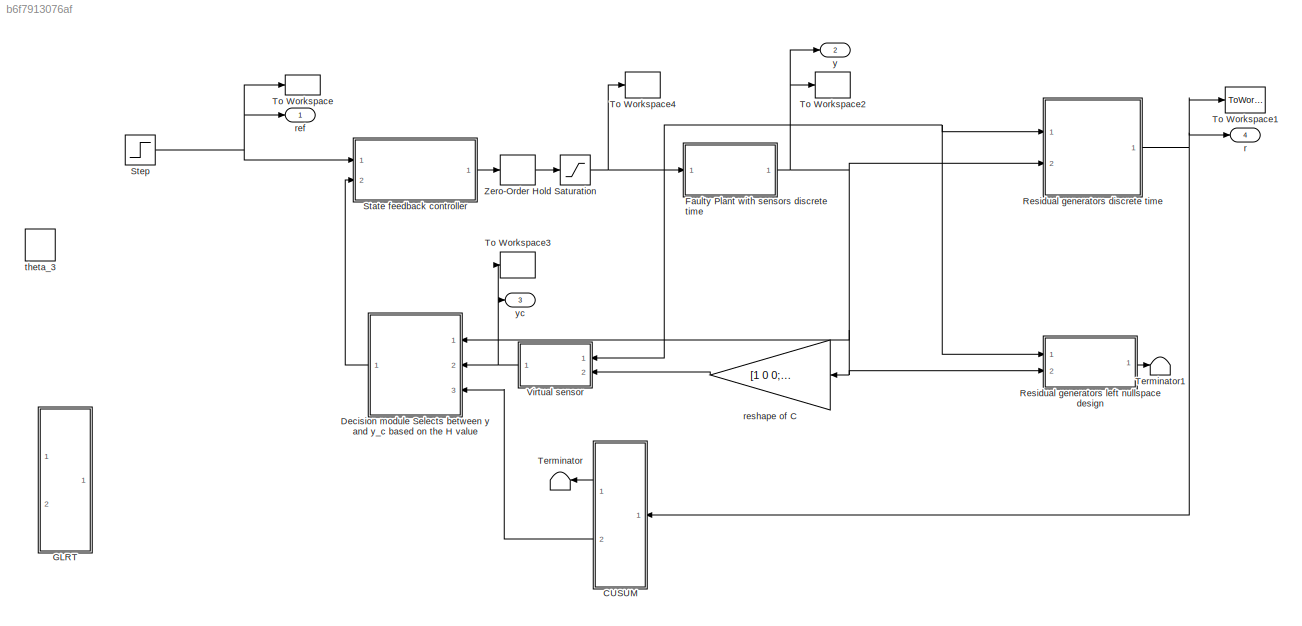
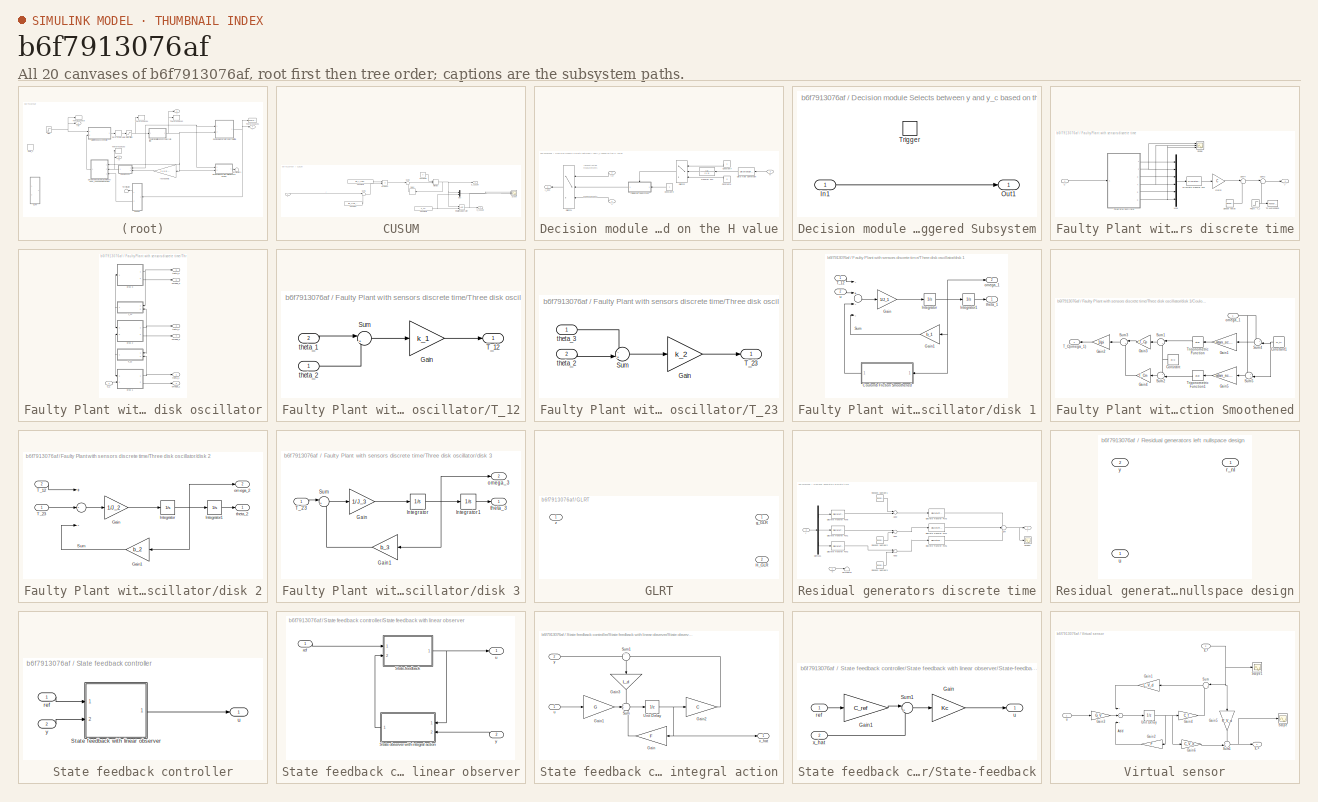
[diagram: thumbnail index - all 20 canvases of the model, root first then tree order]
MODEL slx_b6f7913076af
KIND model
CONFIG AbsTol = auto
CONFIG EnableMultiTasking = off
CONFIG FixedStep = auto
CONFIG MaxStep = auto
CONFIG MinStep = auto
CONFIG RelTol = 1e-8
CONFIG SampleTimeConstraint = Unconstrained
CONFIG Solver = VariableStepAuto
CONFIG SolverName = VariableStepAuto
CONFIG StartTime = 0.0
CONFIG StopTime = simTime
BLOCK [SubSystem] CUSUM
  Ports = [1, 2]
  RequestExecContextInheritance = off
BLOCK [Constant] CUSUM/Constant
  Value = (mu_0 + mu_1_sol)/2
BLOCK [Constant] CUSUM/Constant1
  Value = (mu_1_sol-mu_0)/(var_r0)
BLOCK [Constant] CUSUM/Constant2
  Value = h_sol
  VectorParams1D = off
BLOCK [Constant] CUSUM/Constant3
  Value = 0
BLOCK [Delay] CUSUM/Delay
  DelayLength = 1
  InputPortMap = u0
  Ports = [1, 1]
  SampleTime = 0.004
BLOCK [Outport] CUSUM/H_CUSUM
  IconDisplay = Port number
  Port = 2
BLOCK [MinMax] CUSUM/MinMax
  Function = max
  InputSameDT = off
  Inputs = 2
  Ports = [2, 1]
  SaturateOnIntegerOverflow = off
BLOCK [Mux] CUSUM/Mux
  DisplayOption = bar
  Inputs = 2
  Ports = [2, 1]
BLOCK [Product] CUSUM/Product
  InputSameDT = off
  OutDataTypeStr = Inherit: Inherit via internal rule
  Ports = [2, 1]
  RndMeth = Floor
  SaturateOnIntegerOverflow = off
BLOCK [RelationalOperator] CUSUM/Relational Operator
  InputSameDT = off
  OutDataTypeStr = boolean
  Ports = [2, 1]
  RndMeth = Simplest
BLOCK [Scope] CUSUM/Scope
  Floating = off
  NumInputPorts = 2
  Ports = [2]
  ScopeSpecificationString = Simulink.scopes.TimeScopeBlockCfg('CurrentConfiguration', extmgr.ConfigurationSet(extmgr.Configuration('Core','General UI',true),extmgr.Configuration('Core','Source UI',true),extmgr.Configuration('Sources','WiredSimulink',true,'DataLoggingVariableName','ScopeData1'),extmgr.Configuration('Visuals','Time Domain',true,'SerializedDisplays',{struct('MinYLimReal','-231.0999','MaxYLimReal','2079.89914','...<+2108ch>
BLOCK [Sum] CUSUM/Sum1
  IconShape = round
  InputSameDT = off
  Inputs = |+-
  OutDataTypeStr = Inherit: Inherit via internal rule
  Ports = [2, 1]
  SaturateOnIntegerOverflow = off
BLOCK [Sum] CUSUM/Sum2
  IconShape = round
  InputSameDT = off
  Inputs = |++
  OutDataTypeStr = Inherit: Inherit via internal rule
  Ports = [2, 1]
  SaturateOnIntegerOverflow = off
BLOCK [Outport] CUSUM/g_CUSUM
  IconDisplay = Port number
BLOCK [Inport] CUSUM/r
  IconDisplay = Port number
BLOCK [SubSystem] Decision module Selects between y and y_c based on the H value
  Ports = [3, 1]
  RequestExecContextInheritance = off
BLOCK [Constant] Decision module Selects between y and y_c based on the H value/Constant6
  Value = 0
BLOCK [Constant] Decision module Selects between y and y_c based on the H value/Constant7
BLOCK [Constant] Decision module Selects between y and y_c based on the H value/Constant9
BLOCK [DataTypeConversion] Decision module Selects between y and y_c based on the H value/Data Type Conversion
  OutDataTypeStr = double
  RndMeth = Floor
  SaturateOnIntegerOverflow = off
BLOCK [Inport] Decision module Selects between y and y_c based on the H value/H
  IconDisplay = Port number
  Port = 3
BLOCK [Switch] Decision module Selects between y and y_c based on the H value/Switch1
  InputSameDT = off
  SaturateOnIntegerOverflow = off
  Threshold = 0.98
BLOCK [Switch] Decision module Selects between y and y_c based on the H value/Switch2
  Criteria = u2 > Threshold
  InputSameDT = off
  SaturateOnIntegerOverflow = off
BLOCK [TransferFcn] Decision module Selects between y and y_c based on the H value/Transfer Fcn
  Denominator = [1 1]
BLOCK [SubSystem] Decision module Selects between y and y_c based on the H value/Triggered Subsystem
  Ports = [1, 1, 0, 1]
  RequestExecContextInheritance = off
  TreatAsAtomicUnit = on
BLOCK [Inport] Decision module Selects between y and y_c based on the H value/Triggered Subsystem/In1
  IconDisplay = Port number
BLOCK [Outport] Decision module Selects between y and y_c based on the H value/Triggered Subsystem/Out1
  IconDisplay = Port number
BLOCK [TriggerPort] Decision module Selects between y and y_c based on the H value/Triggered Subsystem/Trigger
  Ports = []
  StatesWhenEnabling = held
  VariantControl = Variant
BLOCK [Inport] Decision module Selects between y and y_c based on the H value/y
  IconDisplay = Port number
BLOCK [Outport] Decision module Selects between y and y_c based on the H value/y_FTC
  IconDisplay = Port number
BLOCK [Inport] Decision module Selects between y and y_c based on the H value/y_c
  IconDisplay = Port number
  Port = 2
BLOCK [SubSystem] Faulty Plant with sensors discrete time
  Ports = [1, 1]
  RequestExecContextInheritance = off
BLOCK [DiscreteTransferFcn] Faulty Plant with sensors discrete time/Discrete Transfer Fcn
  Denominator = [1]
  InputPortMap = u0
  Ports = [1, 1]
  SampleTime = T_s
BLOCK [Step] Faulty Plant with sensors discrete time/Fault: f_y
  After = f_m
  Before = [0;0;0]
  SampleTime = 0
  Time = f_m_time
BLOCK [Gain] Faulty Plant with sensors discrete time/Gain2
  Gain = C
  Multiplication = Matrix(K*u) (u vector)
  OutDataTypeStr = Inherit: Inherit via internal rule
  ParamDataTypeStr = Inherit: Inherit via internal rule
  SaturateOnIntegerOverflow = off
BLOCK [Mux] Faulty Plant with sensors discrete time/Mux
  DisplayOption = bar
  Inputs = 6
  Ports = [6, 1]
BLOCK [Scope] Faulty Plant with sensors discrete time/Scope
  Floating = off
  NumInputPorts = 3
  Ports = [3]
  ScopeSpecificationString = Simulink.scopes.TimeScopeBlockCfg('CurrentConfiguration', extmgr.ConfigurationSet(extmgr.Configuration('Core','General UI',true),extmgr.Configuration('Core','Source UI',true),extmgr.Configuration('Sources','WiredSimulink',true),extmgr.Configuration('Visuals','Time Domain',true,'SerializedDisplays',{struct('MinYLimReal','-0.1547','MaxYLimReal','0.14887','YLabelReal','','MinYLimMag','0.00000','MaxYL...<+2761ch>
BLOCK [RandomNumber] Faulty Plant with sensors discrete time/Sensor noise
  Commented = on
  Mean = zeros(3,1)
  SampleTime = T_s
  Variance = sigma_meas
BLOCK [Sum] Faulty Plant with sensors discrete time/Sum2
  IconShape = round
  InputSameDT = off
  Inputs = |++
  OutDataTypeStr = Inherit: Inherit via internal rule
  Ports = [2, 1]
  SaturateOnIntegerOverflow = off
BLOCK [Sum] Faulty Plant with sensors discrete time/Sum4
  IconShape = round
  InputSameDT = off
  Inputs = |++
  OutDataTypeStr = Inherit: Inherit via internal rule
  Ports = [2, 1]
  SaturateOnIntegerOverflow = off
BLOCK [SubSystem] Faulty Plant with sensors discrete time/Three disk oscillator
  Ports = [1, 6]
  RequestExecContextInheritance = off
BLOCK [SubSystem] Faulty Plant with sensors discrete time/Three disk oscillator/T_12
  Ports = [2, 1]
  RequestExecContextInheritance = off
BLOCK [Gain] Faulty Plant with sensors discrete time/Three disk oscillator/T_12/Gain
  Gain = k_1
  OutDataTypeStr = Inherit: Inherit via internal rule
  ParamDataTypeStr = Inherit: Inherit via internal rule
  SaturateOnIntegerOverflow = off
BLOCK [Sum] Faulty Plant with sensors discrete time/Three disk oscillator/T_12/Sum
  IconShape = round
  InputSameDT = off
  Inputs = |+-
  OutDataTypeStr = Inherit: Inherit via internal rule
  Ports = [2, 1]
  SaturateOnIntegerOverflow = off
BLOCK [Outport] Faulty Plant with sensors discrete time/Three disk oscillator/T_12/T_12
  IconDisplay = Port number
BLOCK [Inport] Faulty Plant with sensors discrete time/Three disk oscillator/T_12/theta_1
  IconDisplay = Port number
  Port = 2
BLOCK [Inport] Faulty Plant with sensors discrete time/Three disk oscillator/T_12/theta_2
  IconDisplay = Port number
BLOCK [SubSystem] Faulty Plant with sensors discrete time/Three disk oscillator/T_23
  Ports = [2, 1]
  RequestExecContextInheritance = off
BLOCK [Gain] Faulty Plant with sensors discrete time/Three disk oscillator/T_23/Gain
  Gain = k_2
  OutDataTypeStr = Inherit: Inherit via internal rule
  ParamDataTypeStr = Inherit: Inherit via internal rule
  SaturateOnIntegerOverflow = off
BLOCK [Sum] Faulty Plant with sensors discrete time/Three disk oscillator/T_23/Sum
  IconShape = round
  InputSameDT = off
  Inputs = -+|
  OutDataTypeStr = Inherit: Inherit via internal rule
  Ports = [2, 1]
  SaturateOnIntegerOverflow = off
BLOCK [Outport] Faulty Plant with sensors discrete time/Three disk oscillator/T_23/T_23
  IconDisplay = Port number
BLOCK [Inport] Faulty Plant with sensors discrete time/Three disk oscillator/T_23/theta_2
  IconDisplay = Port number
  Port = 2
BLOCK [Inport] Faulty Plant with sensors discrete time/Three disk oscillator/T_23/theta_3
  IconDisplay = Port number
BLOCK [SubSystem] Faulty Plant with sensors discrete time/Three disk oscillator/disk 1
  Ports = [2, 2]
  RequestExecContextInheritance = off
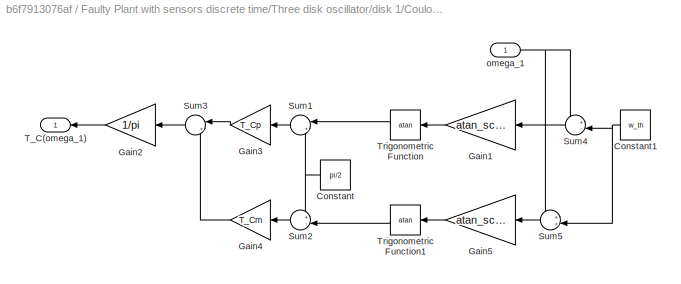
BLOCK [SubSystem] Faulty Plant with sensors discrete time/Three disk oscillator/disk 1/Coulomb Friction Smoothened
  Ports = [1, 1]
  RequestExecContextInheritance = off
BLOCK [Constant] Faulty Plant with sensors discrete time/Three disk oscillator/disk 1/Coulomb Friction Smoothened/Constant
  Value = pi/2
BLOCK [Constant] Faulty Plant with sensors discrete time/Three disk oscillator/disk 1/Coulomb Friction Smoothened/Constant1
  Value = w_th
BLOCK [Gain] Faulty Plant with sensors discrete time/Three disk oscillator/disk 1/Coulomb Friction Smoothened/Gain1
  Gain = atan_scale
  OutDataTypeStr = Inherit: Inherit via internal rule
  ParamDataTypeStr = Inherit: Inherit via internal rule
  SaturateOnIntegerOverflow = off
BLOCK [Gain] Faulty Plant with sensors discrete time/Three disk oscillator/disk 1/Coulomb Friction Smoothened/Gain2
  Gain = 1/pi
  OutDataTypeStr = Inherit: Inherit via internal rule
  ParamDataTypeStr = Inherit: Inherit via internal rule
  SaturateOnIntegerOverflow = off
BLOCK [Gain] Faulty Plant with sensors discrete time/Three disk oscillator/disk 1/Coulomb Friction Smoothened/Gain3
  Gain = T_Cp
  OutDataTypeStr = Inherit: Inherit via internal rule
  ParamDataTypeStr = Inherit: Inherit via internal rule
  SaturateOnIntegerOverflow = off
BLOCK [Gain] Faulty Plant with sensors discrete time/Three disk oscillator/disk 1/Coulomb Friction Smoothened/Gain4
  Gain = T_Cm
  OutDataTypeStr = Inherit: Inherit via internal rule
  ParamDataTypeStr = Inherit: Inherit via internal rule
  SaturateOnIntegerOverflow = off
BLOCK [Gain] Faulty Plant with sensors discrete time/Three disk oscillator/disk 1/Coulomb Friction Smoothened/Gain5
  Gain = atan_scale
  OutDataTypeStr = Inherit: Inherit via internal rule
  ParamDataTypeStr = Inherit: Inherit via internal rule
  SaturateOnIntegerOverflow = off
BLOCK [Sum] Faulty Plant with sensors discrete time/Three disk oscillator/disk 1/Coulomb Friction Smoothened/Sum1
  IconShape = round
  InputSameDT = off
  Inputs = |++
  OutDataTypeStr = Inherit: Inherit via internal rule
  Ports = [2, 1]
  SaturateOnIntegerOverflow = off
BLOCK [Sum] Faulty Plant with sensors discrete time/Three disk oscillator/disk 1/Coulomb Friction Smoothened/Sum2
  IconShape = round
  InputSameDT = off
  Inputs = +-|
  OutDataTypeStr = Inherit: Inherit via internal rule
  Ports = [2, 1]
  SaturateOnIntegerOverflow = off
BLOCK [Sum] Faulty Plant with sensors discrete time/Three disk oscillator/disk 1/Coulomb Friction Smoothened/Sum3
  IconShape = round
  InputSameDT = off
  Inputs = |+-
  OutDataTypeStr = Inherit: Inherit via internal rule
  Ports = [2, 1]
  SaturateOnIntegerOverflow = off
BLOCK [Sum] Faulty Plant with sensors discrete time/Three disk oscillator/disk 1/Coulomb Friction Smoothened/Sum4
  IconShape = round
  InputSameDT = off
  Inputs = +-|
  OutDataTypeStr = Inherit: Inherit via internal rule
  Ports = [2, 1]
  SaturateOnIntegerOverflow = off
BLOCK [Sum] Faulty Plant with sensors discrete time/Three disk oscillator/disk 1/Coulomb Friction Smoothened/Sum5
  IconShape = round
  InputSameDT = off
  Inputs = ++|
  OutDataTypeStr = Inherit: Inherit via internal rule
  Ports = [2, 1]
  SaturateOnIntegerOverflow = off
BLOCK [Outport] Faulty Plant with sensors discrete time/Three disk oscillator/disk 1/Coulomb Friction Smoothened/T_C(omega_1)
  IconDisplay = Port number
BLOCK [Trigonometry] Faulty Plant with sensors discrete time/Three disk oscillator/disk 1/Coulomb Friction Smoothened/Trigonometric Function
  Operator = atan
  Ports = [1, 1]
BLOCK [Trigonometry] Faulty Plant with sensors discrete time/Three disk oscillator/disk 1/Coulomb Friction Smoothened/Trigonometric Function1
  Operator = atan
  Ports = [1, 1]
BLOCK [Inport] Faulty Plant with sensors discrete time/Three disk oscillator/disk 1/Coulomb Friction Smoothened/omega_1
  IconDisplay = Port number
BLOCK [Gain] Faulty Plant with sensors discrete time/Three disk oscillator/disk 1/Gain
  Gain = 1/J_1
  OutDataTypeStr = Inherit: Inherit via internal rule
  ParamDataTypeStr = Inherit: Inherit via internal rule
  SaturateOnIntegerOverflow = off
BLOCK [Gain] Faulty Plant with sensors discrete time/Three disk oscillator/disk 1/Gain1
  Gain = b_1
  OutDataTypeStr = Inherit: Inherit via internal rule
  ParamDataTypeStr = Inherit: Inherit via internal rule
  SaturateOnIntegerOverflow = off
BLOCK [Integrator] Faulty Plant with sensors discrete time/Three disk oscillator/disk 1/Integrator
  InitialCondition = x_0(2)
  Ports = [1, 1]
BLOCK [Integrator] Faulty Plant with sensors discrete time/Three disk oscillator/disk 1/Integrator1
  InitialCondition = x_0(1)
  Ports = [1, 1]
BLOCK [Sum] Faulty Plant with sensors discrete time/Three disk oscillator/disk 1/Sum
  InputSameDT = off
  Inputs = -+--
  OutDataTypeStr = Inherit: Inherit via internal rule
  Ports = [4, 1]
  SaturateOnIntegerOverflow = off
BLOCK [Inport] Faulty Plant with sensors discrete time/Three disk oscillator/disk 1/T_12
  IconDisplay = Port number
BLOCK [Outport] Faulty Plant with sensors discrete time/Three disk oscillator/disk 1/omega_1
  IconDisplay = Port number
  Port = 2
BLOCK [Outport] Faulty Plant with sensors discrete time/Three disk oscillator/disk 1/theta_1
  IconDisplay = Port number
BLOCK [Inport] Faulty Plant with sensors discrete time/Three disk oscillator/disk 1/u
  IconDisplay = Port number
  Port = 2
BLOCK [SubSystem] Faulty Plant with sensors discrete time/Three disk oscillator/disk 2
  Ports = [2, 2]
  RequestExecContextInheritance = off
BLOCK [Gain] Faulty Plant with sensors discrete time/Three disk oscillator/disk 2/Gain
  Gain = 1/J_2
  OutDataTypeStr = Inherit: Inherit via internal rule
  ParamDataTypeStr = Inherit: Inherit via internal rule
  SaturateOnIntegerOverflow = off
BLOCK [Gain] Faulty Plant with sensors discrete time/Three disk oscillator/disk 2/Gain1
  Gain = b_2
  OutDataTypeStr = Inherit: Inherit via internal rule
  ParamDataTypeStr = Inherit: Inherit via internal rule
  SaturateOnIntegerOverflow = off
BLOCK [Integrator] Faulty Plant with sensors discrete time/Three disk oscillator/disk 2/Integrator
  InitialCondition = x_0(4)
  Ports = [1, 1]
BLOCK [Integrator] Faulty Plant with sensors discrete time/Three disk oscillator/disk 2/Integrator1
  InitialCondition = x_0(3)
  Ports = [1, 1]
BLOCK [Sum] Faulty Plant with sensors discrete time/Three disk oscillator/disk 2/Sum
  InputSameDT = off
  Inputs = +--
  OutDataTypeStr = Inherit: Inherit via internal rule
  Ports = [3, 1]
  SaturateOnIntegerOverflow = off
BLOCK [Inport] Faulty Plant with sensors discrete time/Three disk oscillator/disk 2/T_12
  IconDisplay = Port number
  Port = 2
BLOCK [Inport] Faulty Plant with sensors discrete time/Three disk oscillator/disk 2/T_23
  IconDisplay = Port number
BLOCK [Outport] Faulty Plant with sensors discrete time/Three disk oscillator/disk 2/omega_2
  IconDisplay = Port number
  Port = 2
BLOCK [Outport] Faulty Plant with sensors discrete time/Three disk oscillator/disk 2/theta_2
  IconDisplay = Port number
BLOCK [SubSystem] Faulty Plant with sensors discrete time/Three disk oscillator/disk 3
  Ports = [1, 2]
  RequestExecContextInheritance = off
BLOCK [Gain] Faulty Plant with sensors discrete time/Three disk oscillator/disk 3/Gain
  Gain = 1/J_3
  OutDataTypeStr = Inherit: Inherit via internal rule
  ParamDataTypeStr = Inherit: Inherit via internal rule
  SaturateOnIntegerOverflow = off
BLOCK [Gain] Faulty Plant with sensors discrete time/Three disk oscillator/disk 3/Gain1
  Gain = b_3
  OutDataTypeStr = Inherit: Inherit via internal rule
  ParamDataTypeStr = Inherit: Inherit via internal rule
  SaturateOnIntegerOverflow = off
BLOCK [Integrator] Faulty Plant with sensors discrete time/Three disk oscillator/disk 3/Integrator
  InitialCondition = x_0(6)
  Ports = [1, 1]
BLOCK [Integrator] Faulty Plant with sensors discrete time/Three disk oscillator/disk 3/Integrator1
  InitialCondition = x_0(5)
  Ports = [1, 1]
BLOCK [Sum] Faulty Plant with sensors discrete time/Three disk oscillator/disk 3/Sum
  IconShape = round
  InputSameDT = off
  Inputs = |+-
  OutDataTypeStr = Inherit: Inherit via internal rule
  Ports = [2, 1]
  SaturateOnIntegerOverflow = off
BLOCK [Inport] Faulty Plant with sensors discrete time/Three disk oscillator/disk 3/T_23
  IconDisplay = Port number
BLOCK [Outport] Faulty Plant with sensors discrete time/Three disk oscillator/disk 3/omega_3
  IconDisplay = Port number
  Port = 2
BLOCK [Outport] Faulty Plant with sensors discrete time/Three disk oscillator/disk 3/theta_3
  IconDisplay = Port number
BLOCK [Outport] Faulty Plant with sensors discrete time/Three disk oscillator/omega_1
  IconDisplay = Port number
  Port = 2
BLOCK [Outport] Faulty Plant with sensors discrete time/Three disk oscillator/omega_2
  IconDisplay = Port number
  Port = 4
BLOCK [Outport] Faulty Plant with sensors discrete time/Three disk oscillator/omega_3
  IconDisplay = Port number
  Port = 6
BLOCK [Outport] Faulty Plant with sensors discrete time/Three disk oscillator/theta_1
  IconDisplay = Port number
BLOCK [Outport] Faulty Plant with sensors discrete time/Three disk oscillator/theta_2
  IconDisplay = Port number
  Port = 3
BLOCK [Outport] Faulty Plant with sensors discrete time/Three disk oscillator/theta_3
  IconDisplay = Port number
  Port = 5
BLOCK [Inport] Faulty Plant with sensors discrete time/Three disk oscillator/u_1
  IconDisplay = Port number
BLOCK [ToWorkspace] Faulty Plant with sensors discrete time/To Workspace
  FixptAsFi = on
  MaxDataPoints = inf
  Ports = [1]
  SampleTime = -1
  SaveFormat = Structure With Time
  VariableName = f_y
BLOCK [Inport] Faulty Plant with sensors discrete time/u
  IconDisplay = Port number
BLOCK [Outport] Faulty Plant with sensors discrete time/y
  IconDisplay = Port number
BLOCK [SubSystem] GLRT
  Commented = on
  Ports = [1, 2]
  RequestExecContextInheritance = off
BLOCK [Outport] GLRT/H_GLR
  IconDisplay = Port number
  Port = 2
BLOCK [Outport] GLRT/g_GLR
  IconDisplay = Port number
BLOCK [Inport] GLRT/z
  IconDisplay = Port number
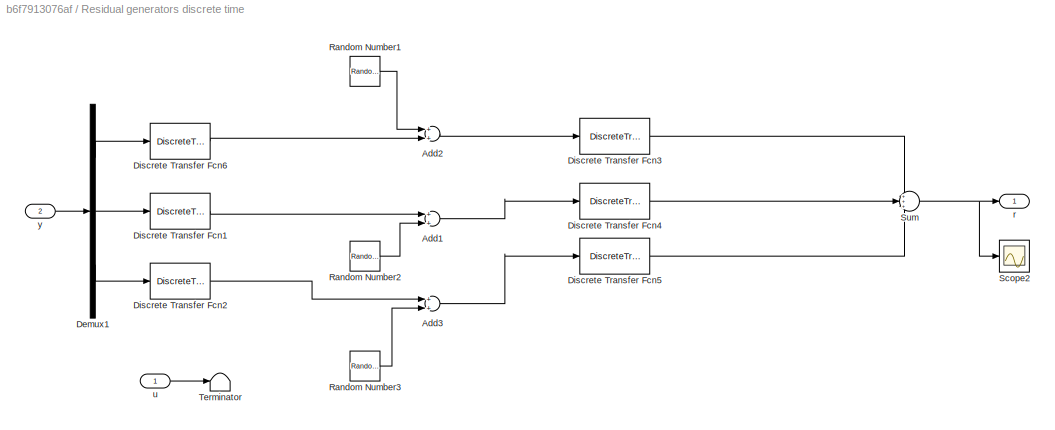
BLOCK [SubSystem] Residual generators discrete time
  Ports = [2, 1]
  RequestExecContextInheritance = off
BLOCK [Sum] Residual generators discrete time/Add1
  InputSameDT = off
  OutDataTypeStr = Inherit: Inherit via internal rule
  Ports = [2, 1]
  SaturateOnIntegerOverflow = off
BLOCK [Sum] Residual generators discrete time/Add2
  InputSameDT = off
  OutDataTypeStr = Inherit: Inherit via internal rule
  Ports = [2, 1]
  SaturateOnIntegerOverflow = off
BLOCK [Sum] Residual generators discrete time/Add3
  InputSameDT = off
  OutDataTypeStr = Inherit: Inherit via internal rule
  Ports = [2, 1]
  SaturateOnIntegerOverflow = off
BLOCK [Demux] Residual generators discrete time/Demux1
  DisplayOption = bar
  Outputs = 3
  Ports = [1, 3]
BLOCK [DiscreteTransferFcn] Residual generators discrete time/Discrete Transfer Fcn1
  Denominator = [1]
  InputPortMap = u0
  Ports = [1, 1]
  SampleTime = 0.004
BLOCK [DiscreteTransferFcn] Residual generators discrete time/Discrete Transfer Fcn2
  Denominator = [1]
  InputPortMap = u0
  Ports = [1, 1]
  SampleTime = 0.004
BLOCK [DiscreteTransferFcn] Residual generators discrete time/Discrete Transfer Fcn3
  Denominator = G_y1_d.Denominator{1,1}
  InputPortMap = u0
  Numerator = G_y1_d.Numerator{1,1}
  Ports = [1, 1]
BLOCK [DiscreteTransferFcn] Residual generators discrete time/Discrete Transfer Fcn4
  Denominator = G_y2_d.Denominator{1,1}
  InputPortMap = u0
  Numerator = G_y2_d.Numerator{1,1}
  Ports = [1, 1]
BLOCK [DiscreteTransferFcn] Residual generators discrete time/Discrete Transfer Fcn5
  Denominator = G_y3_d.Denominator{1,1}
  InputPortMap = u0
  Numerator = G_y3_d.Numerator{1,1}
  Ports = [1, 1]
BLOCK [DiscreteTransferFcn] Residual generators discrete time/Discrete Transfer Fcn6
  Denominator = [1]
  InputPortMap = u0
  Ports = [1, 1]
  SampleTime = 0.004
BLOCK [RandomNumber] Residual generators discrete time/Random Number1
  SampleTime = T_s
  Seed = 124234
  Variance = 0.01^2
BLOCK [RandomNumber] Residual generators discrete time/Random Number2
  SampleTime = T_s
  Seed = 245364
  Variance = 0.01^2
BLOCK [RandomNumber] Residual generators discrete time/Random Number3
  SampleTime = T_s
  Seed = 1465
  Variance = 0.01^2
BLOCK [Scope] Residual generators discrete time/Scope2
  Floating = off
  NumInputPorts = 1
  Ports = [1]
  ScopeSpecificationString = Simulink.scopes.TimeScopeBlockCfg('CurrentConfiguration', extmgr.ConfigurationSet(extmgr.Configuration('Core','General UI',true),extmgr.Configuration('Core','Source UI',true),extmgr.Configuration('Sources','WiredSimulink',true,'DataLoggingVariableName','ScopeData3'),extmgr.Configuration('Visuals','Time Domain',true,'SerializedDisplays',{struct('MinYLimReal','-168.65582','MaxYLimReal','61.33988','Y...<+1526ch>
BLOCK [Sum] Residual generators discrete time/Sum
  IconShape = round
  InputSameDT = off
  Inputs = +++
  OutDataTypeStr = Inherit: Inherit via internal rule
  Ports = [3, 1]
  SaturateOnIntegerOverflow = off
BLOCK [Terminator] Residual generators discrete time/Terminator
BLOCK [Outport] Residual generators discrete time/r
  IconDisplay = Port number
BLOCK [Inport] Residual generators discrete time/u
  IconDisplay = Port number
BLOCK [Inport] Residual generators discrete time/y
  IconDisplay = Port number
  Port = 2
BLOCK [SubSystem] Residual generators left nullspace design
  Commented = on
  Ports = [2, 1]
  RequestExecContextInheritance = off
BLOCK [Outport] Residual generators left nullspace design/r_nl
  IconDisplay = Port number
BLOCK [Inport] Residual generators left nullspace design/u
  IconDisplay = Port number
BLOCK [Inport] Residual generators left nullspace design/y
  IconDisplay = Port number
  Port = 2
BLOCK [Saturate] Saturation
  InputPortMap = u0
  LowerLimit = -2
  Ports = [1, 1]
  UpperLimit = 2
BLOCK [SubSystem] State feedback controller
  Ports = [2, 1]
  RequestExecContextInheritance = off
BLOCK [SubSystem] State feedback controller/State feedback with linear observer
  Ports = [2, 1]
  RequestExecContextInheritance = off
BLOCK [SubSystem] State feedback controller/State feedback with linear observer/State observer with integral action
  Ports = [2, 1]
  RequestExecContextInheritance = off
BLOCK [Gain] State feedback controller/State feedback with linear observer/State observer with integral action/Gain
  Gain = F
  Multiplication = Matrix(K*u) (u vector)
  OutDataTypeStr = Inherit: Inherit via internal rule
  ParamDataTypeStr = Inherit: Inherit via internal rule
  SaturateOnIntegerOverflow = off
BLOCK [Gain] State feedback controller/State feedback with linear observer/State observer with integral action/Gain1
  Gain = G
  Multiplication = Matrix(K*u) (u vector)
  OutDataTypeStr = Inherit: Inherit via internal rule
  ParamDataTypeStr = Inherit: Inherit via internal rule
  SaturateOnIntegerOverflow = off
BLOCK [Gain] State feedback controller/State feedback with linear observer/State observer with integral action/Gain2
  Gain = C
  Multiplication = Matrix(K*u) (u vector)
  OutDataTypeStr = Inherit: Inherit via internal rule
  ParamDataTypeStr = Inherit: Inherit via internal rule
  SaturateOnIntegerOverflow = off
BLOCK [Gain] State feedback controller/State feedback with linear observer/State observer with integral action/Gain3
  Gain = L_d
  Multiplication = Matrix(K*u) (u vector)
  OutDataTypeStr = Inherit: Inherit via internal rule
  ParamDataTypeStr = Inherit: Inherit via internal rule
  SaturateOnIntegerOverflow = off
BLOCK [Sum] State feedback controller/State feedback with linear observer/State observer with integral action/Sum
  IconShape = round
  InputSameDT = off
  Inputs = +++
  OutDataTypeStr = Inherit: Inherit via internal rule
  Ports = [3, 1]
  SaturateOnIntegerOverflow = off
BLOCK [Sum] State feedback controller/State feedback with linear observer/State observer with integral action/Sum1
  IconShape = round
  InputSameDT = off
  Inputs = +-
  OutDataTypeStr = Inherit: Inherit via internal rule
  Ports = [2, 1]
  SaturateOnIntegerOverflow = off
BLOCK [UnitDelay] State feedback controller/State feedback with linear observer/State observer with integral action/Unit Delay
  HasFrameUpgradeWarning = on
  SampleTime = T_s
BLOCK [Inport] State feedback controller/State feedback with linear observer/State observer with integral action/u
  IconDisplay = Port number
BLOCK [Outport] State feedback controller/State feedback with linear observer/State observer with integral action/x_hat
  IconDisplay = Port number
BLOCK [Inport] State feedback controller/State feedback with linear observer/State observer with integral action/y
  IconDisplay = Port number
  Port = 2
BLOCK [SubSystem] State feedback controller/State feedback with linear observer/State-feedback
  Ports = [2, 1]
  RequestExecContextInheritance = off
BLOCK [Gain] State feedback controller/State feedback with linear observer/State-feedback/Gain
  Gain = Kc
  Multiplication = Matrix(K*u) (u vector)
  OutDataTypeStr = Inherit: Inherit via internal rule
  ParamDataTypeStr = Inherit: Inherit via internal rule
  SaturateOnIntegerOverflow = off
BLOCK [Gain] State feedback controller/State feedback with linear observer/State-feedback/Gain1
  Gain = C_ref
  Multiplication = Matrix(K*u) (u vector)
  OutDataTypeStr = Inherit: Inherit via internal rule
  ParamDataTypeStr = Inherit: Inherit via internal rule
  SaturateOnIntegerOverflow = off
BLOCK [Sum] State feedback controller/State feedback with linear observer/State-feedback/Sum1
  IconShape = round
  InputSameDT = off
  Inputs = |+-
  OutDataTypeStr = Inherit: Inherit via internal rule
  Ports = [2, 1]
  SaturateOnIntegerOverflow = off
BLOCK [Inport] State feedback controller/State feedback with linear observer/State-feedback/ref
  IconDisplay = Port number
BLOCK [Outport] State feedback controller/State feedback with linear observer/State-feedback/u
  IconDisplay = Port number
BLOCK [Inport] State feedback controller/State feedback with linear observer/State-feedback/x_hat
  IconDisplay = Port number
  Port = 2
BLOCK [Inport] State feedback controller/State feedback with linear observer/ref
  IconDisplay = Port number
BLOCK [Outport] State feedback controller/State feedback with linear observer/u
  IconDisplay = Port number
BLOCK [Inport] State feedback controller/State feedback with linear observer/y
  IconDisplay = Port number
  Port = 2
BLOCK [Inport] State feedback controller/ref
  IconDisplay = Port number
BLOCK [Outport] State feedback controller/u
  IconDisplay = Port number
BLOCK [Inport] State feedback controller/y
  IconDisplay = Port number
  Port = 2
BLOCK [Step] Step
  After = theta_3_ref
  SampleTime = 0
  Time = 15
BLOCK [Terminator] Terminator
BLOCK [Terminator] Terminator1
BLOCK [ToWorkspace] To Workspace
  FixptAsFi = on
  MaxDataPoints = inf
  Ports = [1]
  SampleTime = -1
  SaveFormat = Structure With Time
  VariableName = ref
BLOCK [ToWorkspace] To Workspace1
  FixptAsFi = on
  MaxDataPoints = inf
  Ports = [1]
  SampleTime = -1
  SaveFormat = Structure With Time
  VariableName = r
BLOCK [ToWorkspace] To Workspace2
  FixptAsFi = on
  MaxDataPoints = inf
  Ports = [1]
  SampleTime = -1
  SaveFormat = Structure With Time
  VariableName = y
BLOCK [ToWorkspace] To Workspace3
  FixptAsFi = on
  MaxDataPoints = inf
  Ports = [1]
  SampleTime = -1
  SaveFormat = Structure With Time
  VariableName = yc
BLOCK [ToWorkspace] To Workspace4
  FixptAsFi = on
  MaxDataPoints = inf
  Ports = [1]
  SampleTime = -1
  SaveFormat = Structure With Time
  VariableName = u
BLOCK [SubSystem] Virtual sensor
  Ports = [2, 1]
  RequestExecContextInheritance = off
BLOCK [Sum] Virtual sensor/Add
  InputSameDT = off
  Inputs = +++
  OutDataTypeStr = Inherit: Inherit via internal rule
  Ports = [3, 1]
  SaturateOnIntegerOverflow = off
BLOCK [Gain] Virtual sensor/Gain1
  Gain = L_V_d
  Multiplication = Matrix(K*u)
  OutDataTypeStr = Inherit: Inherit via internal rule
  ParamDataTypeStr = Inherit: Inherit via internal rule
  SaturateOnIntegerOverflow = off
BLOCK [Gain] Virtual sensor/Gain2
  Gain = F
  Multiplication = Matrix(K*u)
  OutDataTypeStr = Inherit: Inherit via internal rule
  ParamDataTypeStr = Inherit: Inherit via internal rule
  SaturateOnIntegerOverflow = off
BLOCK [Gain] Virtual sensor/Gain3
  Gain = G_V
  Multiplication = Matrix(K*u)
  OutDataTypeStr = Inherit: Inherit via internal rule
  ParamDataTypeStr = Inherit: Inherit via internal rule
  SaturateOnIntegerOverflow = off
BLOCK [Gain] Virtual sensor/Gain4
  Gain = C_f
  Multiplication = Matrix(K*u)
  OutDataTypeStr = Inherit: Inherit via internal rule
  ParamDataTypeStr = Inherit: Inherit via internal rule
  SaturateOnIntegerOverflow = off
BLOCK [Gain] Virtual sensor/Gain5
  Gain = P_V_d
  Multiplication = Matrix(K*u)
  OutDataTypeStr = Inherit: Inherit via internal rule
  ParamDataTypeStr = Inherit: Inherit via internal rule
  SaturateOnIntegerOverflow = off
BLOCK [Gain] Virtual sensor/Gain6
  Gain = C_V_d
  Multiplication = Matrix(K*u)
  OutDataTypeStr = Inherit: Inherit via internal rule
  ParamDataTypeStr = Inherit: Inherit via internal rule
  SaturateOnIntegerOverflow = off
BLOCK [Scope] Virtual sensor/Scope
  Floating = off
  NumInputPorts = 1
  Ports = [1]
  ScopeSpecificationString = Simulink.scopes.TimeScopeBlockCfg('CurrentConfiguration', extmgr.ConfigurationSet(extmgr.Configuration('Core','General UI',true),extmgr.Configuration('Core','Source UI',true),extmgr.Configuration('Sources','WiredSimulink',true,'DataLoggingVariableName','ScopeData1'),extmgr.Configuration('Visuals','Time Domain',true,'SerializedDisplays',{struct('MinYLimReal','-0.20968','MaxYLimReal','1.77247','YLab...<+1425ch>
BLOCK [Scope] Virtual sensor/Scope1
  Floating = off
  NumInputPorts = 1
  Ports = [1]
  ScopeSpecificationString = Simulink.scopes.TimeScopeBlockCfg('CurrentConfiguration', extmgr.ConfigurationSet(extmgr.Configuration('Core','General UI',true),extmgr.Configuration('Core','Source UI',true),extmgr.Configuration('Sources','WiredSimulink',true,'DataLoggingVariableName','ScopeData2'),extmgr.Configuration('Visuals','Time Domain',true,'SerializedDisplays',{struct('MinYLimReal','-0.20851','MaxYLimReal','1.77234','YLab...<+1413ch>
BLOCK [Sum] Virtual sensor/Sum
  IconShape = round
  InputSameDT = off
  Inputs = |+-
  OutDataTypeStr = Inherit: Inherit via internal rule
  Ports = [2, 1]
  SaturateOnIntegerOverflow = off
BLOCK [Sum] Virtual sensor/Sum1
  IconShape = round
  InputSameDT = off
  Inputs = ++|
  OutDataTypeStr = Inherit: Inherit via internal rule
  Ports = [2, 1]
  SaturateOnIntegerOverflow = off
BLOCK [UnitDelay] Virtual sensor/Unit Delay
  HasFrameUpgradeWarning = on
  SampleTime = Ts
BLOCK [Inport] Virtual sensor/u
  IconDisplay = Port number
BLOCK [Outport] Virtual sensor/y_c
  IconDisplay = Port number
BLOCK [Inport] Virtual sensor/y_f
  IconDisplay = Port number
  Port = 2
BLOCK [ZeroOrderHold] Zero-Order Hold
  SampleTime = T_s
BLOCK [Outport] r
  IconDisplay = Port number
  Port = 4
  VectorParamsAs1DForOutWhenUnconnected = on
BLOCK [Outport] ref
  IconDisplay = Port number
  VectorParamsAs1DForOutWhenUnconnected = on
BLOCK [Gain] reshape of C
  Gain = [1 0 0;0 0 1]
  Multiplication = Matrix(K*u) (u vector)
  OutDataTypeStr = Inherit: Inherit via internal rule
  ParamDataTypeStr = Inherit: Inherit via internal rule
  SaturateOnIntegerOverflow = off
BLOCK [DiscretePulseGenerator] theta_3
  Amplitude = theta_3_ref
  Commented = on
  Period = 30
  Ports = [0, 1]
  PulseType = Time based
  PulseWidth = 50
BLOCK [Outport] y
  IconDisplay = Port number
  Port = 2
  VectorParamsAs1DForOutWhenUnconnected = on
BLOCK [Outport] yc
  IconDisplay = Port number
  Port = 3
  VectorParamsAs1DForOutWhenUnconnected = on
ANNOTATION Decision module Selects between y and y_c based on the H value: measurements
ANNOTATION Decision module Selects between y and y_c based on the H value: reconstructed measurements
LINE CUSUM/Constant1:1 -> CUSUM/Product:1
NET CUSUM/Constant2:1 -> CUSUM/Mux:2, CUSUM/Relational Operator:2
LINE CUSUM/Constant3:1 -> CUSUM/MinMax:1
LINE CUSUM/Constant:1 -> CUSUM/Sum1:2
LINE CUSUM/Delay:1 -> CUSUM/Sum2:2
NET CUSUM/MinMax:1 -> CUSUM/Delay:1, CUSUM/Mux:1, CUSUM/Relational Operator:1, CUSUM/g_CUSUM:1
LINE CUSUM/Mux:1 -> CUSUM/Scope:1
LINE CUSUM/Product:1 -> CUSUM/Sum2:1
NET CUSUM/Relational Operator:1 -> CUSUM/H_CUSUM:1, CUSUM/Scope:2
LINE CUSUM/Sum1:1 -> CUSUM/Product:2
LINE CUSUM/Sum2:1 -> CUSUM/MinMax:2
LINE CUSUM/r:1 -> CUSUM/Sum1:1
LINE CUSUM:1 -> Terminator:1
LINE CUSUM:2 -> Decision module Selects between y and y_c based on the H value:3
LINE Decision module Selects between y and y_c based on the H value/Constant6:1 -> Decision module Selects between y and y_c based on the H value/Switch2:3
LINE Decision module Selects between y and y_c based on the H value/Constant7:1 -> Decision module Selects between y and y_c based on the H value/Switch2:1
LINE Decision module Selects between y and y_c based on the H value/Constant9:1 -> Decision module Selects between y and y_c based on the H value/Triggered Subsystem:1
LINE Decision module Selects between y and y_c based on the H value/Data Type Conversion:1 -> Decision module Selects between y and y_c based on the H value/Transfer Fcn:1
LINE Decision module Selects between y and y_c based on the H value/H:1 -> Decision module Selects between y and y_c based on the H value/Data Type Conversion:1
LINE Decision module Selects between y and y_c based on the H value/Switch1:1 -> Decision module Selects between y and y_c based on the H value/y_FTC:1
LINE Decision module Selects between y and y_c based on the H value/Switch2:1 -> Decision module Selects between y and y_c based on the H value/Triggered Subsystem:trigger
LINE Decision module Selects between y and y_c based on the H value/Transfer Fcn:1 -> Decision module Selects between y and y_c based on the H value/Switch2:2
LINE Decision module Selects between y and y_c based on the H value/Triggered Subsystem/In1:1 -> Decision module Selects between y and y_c based on the H value/Triggered Subsystem/Out1:1
LINE Decision module Selects between y and y_c based on the H value/Triggered Subsystem:1 -> Decision module Selects between y and y_c based on the H value/Switch1:2
LINE Decision module Selects between y and y_c based on the H value/y:1 -> Decision module Selects between y and y_c based on the H value/Switch1:3
LINE Decision module Selects between y and y_c based on the H value/y_c:1 -> Decision module Selects between y and y_c based on the H value/Switch1:1
LINE Decision module Selects between y and y_c based on the H value:1 -> State feedback controller:2
LINE Faulty Plant with sensors discrete time/Discrete Transfer Fcn:1 -> Faulty Plant with sensors discrete time/Gain2:1
NET Faulty Plant with sensors discrete time/Fault: f_y:1 -> Faulty Plant with sensors discrete time/Sum2:2, Faulty Plant with sensors discrete time/To Workspace:1
LINE Faulty Plant with sensors discrete time/Gain2:1 -> Faulty Plant with sensors discrete time/Sum4:1
LINE Faulty Plant with sensors discrete time/Mux:1 -> Faulty Plant with sensors discrete time/Discrete Transfer Fcn:1
LINE Faulty Plant with sensors discrete time/Sensor noise:1 -> Faulty Plant with sensors discrete time/Sum4:2
LINE Faulty Plant with sensors discrete time/Sum2:1 -> Faulty Plant with sensors discrete time/y:1
LINE Faulty Plant with sensors discrete time/Sum4:1 -> Faulty Plant with sensors discrete time/Sum2:1
LINE Faulty Plant with sensors discrete time/Three disk oscillator/T_12/Gain:1 -> Faulty Plant with sensors discrete time/Three disk oscillator/T_12/T_12:1
LINE Faulty Plant with sensors discrete time/Three disk oscillator/T_12/Sum:1 -> Faulty Plant with sensors discrete time/Three disk oscillator/T_12/Gain:1
LINE Faulty Plant with sensors discrete time/Three disk oscillator/T_12/theta_1:1 -> Faulty Plant with sensors discrete time/Three disk oscillator/T_12/Sum:1
LINE Faulty Plant with sensors discrete time/Three disk oscillator/T_12/theta_2:1 -> Faulty Plant with sensors discrete time/Three disk oscillator/T_12/Sum:2
NET Faulty Plant with sensors discrete time/Three disk oscillator/T_12:1 -> Faulty Plant with sensors discrete time/Three disk oscillator/disk 1:1, Faulty Plant with sensors discrete time/Three disk oscillator/disk 2:2
LINE Faulty Plant with sensors discrete time/Three disk oscillator/T_23/Gain:1 -> Faulty Plant with sensors discrete time/Three disk oscillator/T_23/T_23:1
LINE Faulty Plant with sensors discrete time/Three disk oscillator/T_23/Sum:1 -> Faulty Plant with sensors discrete time/Three disk oscillator/T_23/Gain:1
LINE Faulty Plant with sensors discrete time/Three disk oscillator/T_23/theta_2:1 -> Faulty Plant with sensors discrete time/Three disk oscillator/T_23/Sum:2
LINE Faulty Plant with sensors discrete time/Three disk oscillator/T_23/theta_3:1 -> Faulty Plant with sensors discrete time/Three disk oscillator/T_23/Sum:1
NET Faulty Plant with sensors discrete time/Three disk oscillator/T_23:1 -> Faulty Plant with sensors discrete time/Three disk oscillator/disk 2:1, Faulty Plant with sensors discrete time/Three disk oscillator/disk 3:1
NET Faulty Plant with sensors discrete time/Three disk oscillator/disk 1/Coulomb Friction Smoothened/Constant1:1 -> Faulty Plant with sensors discrete time/Three disk oscillator/disk 1/Coulomb Friction Smoothened/Sum4:2, Faulty Plant with sensors discrete time/Three disk oscillator/disk 1/Coulomb Friction Smoothened/Sum5:2
NET Faulty Plant with sensors discrete time/Three disk oscillator/disk 1/Coulomb Friction Smoothened/Constant:1 -> Faulty Plant with sensors discrete time/Three disk oscillator/disk 1/Coulomb Friction Smoothened/Sum1:2, Faulty Plant with sensors discrete time/Three disk oscillator/disk 1/Coulomb Friction Smoothened/Sum2:1
LINE Faulty Plant with sensors discrete time/Three disk oscillator/disk 1/Coulomb Friction Smoothened/Gain1:1 -> Faulty Plant with sensors discrete time/Three disk oscillator/disk 1/Coulomb Friction Smoothened/Trigonometric Function:1
LINE Faulty Plant with sensors discrete time/Three disk oscillator/disk 1/Coulomb Friction Smoothened/Gain2:1 -> Faulty Plant with sensors discrete time/Three disk oscillator/disk 1/Coulomb Friction Smoothened/T_C(omega_1):1
LINE Faulty Plant with sensors discrete time/Three disk oscillator/disk 1/Coulomb Friction Smoothened/Gain3:1 -> Faulty Plant with sensors discrete time/Three disk oscillator/disk 1/Coulomb Friction Smoothened/Sum3:1
LINE Faulty Plant with sensors discrete time/Three disk oscillator/disk 1/Coulomb Friction Smoothened/Gain4:1 -> Faulty Plant with sensors discrete time/Three disk oscillator/disk 1/Coulomb Friction Smoothened/Sum3:2
LINE Faulty Plant with sensors discrete time/Three disk oscillator/disk 1/Coulomb Friction Smoothened/Gain5:1 -> Faulty Plant with sensors discrete time/Three disk oscillator/disk 1/Coulomb Friction Smoothened/Trigonometric Function1:1
LINE Faulty Plant with sensors discrete time/Three disk oscillator/disk 1/Coulomb Friction Smoothened/Sum1:1 -> Faulty Plant with sensors discrete time/Three disk oscillator/disk 1/Coulomb Friction Smoothened/Gain3:1
LINE Faulty Plant with sensors discrete time/Three disk oscillator/disk 1/Coulomb Friction Smoothened/Sum2:1 -> Faulty Plant with sensors discrete time/Three disk oscillator/disk 1/Coulomb Friction Smoothened/Gain4:1
LINE Faulty Plant with sensors discrete time/Three disk oscillator/disk 1/Coulomb Friction Smoothened/Sum3:1 -> Faulty Plant with sensors discrete time/Three disk oscillator/disk 1/Coulomb Friction Smoothened/Gain2:1
LINE Faulty Plant with sensors discrete time/Three disk oscillator/disk 1/Coulomb Friction Smoothened/Sum4:1 -> Faulty Plant with sensors discrete time/Three disk oscillator/disk 1/Coulomb Friction Smoothened/Gain1:1
LINE Faulty Plant with sensors discrete time/Three disk oscillator/disk 1/Coulomb Friction Smoothened/Sum5:1 -> Faulty Plant with sensors discrete time/Three disk oscillator/disk 1/Coulomb Friction Smoothened/Gain5:1
LINE Faulty Plant with sensors discrete time/Three disk oscillator/disk 1/Coulomb Friction Smoothened/Trigonometric Function1:1 -> Faulty Plant with sensors discrete time/Three disk oscillator/disk 1/Coulomb Friction Smoothened/Sum2:2
LINE Faulty Plant with sensors discrete time/Three disk oscillator/disk 1/Coulomb Friction Smoothened/Trigonometric Function:1 -> Faulty Plant with sensors discrete time/Three disk oscillator/disk 1/Coulomb Friction Smoothened/Sum1:1
NET Faulty Plant with sensors discrete time/Three disk oscillator/disk 1/Coulomb Friction Smoothened/omega_1:1 -> Faulty Plant with sensors discrete time/Three disk oscillator/disk 1/Coulomb Friction Smoothened/Sum4:1, Faulty Plant with sensors discrete time/Three disk oscillator/disk 1/Coulomb Friction Smoothened/Sum5:1
LINE Faulty Plant with sensors discrete time/Three disk oscillator/disk 1/Coulomb Friction Smoothened:1 -> Faulty Plant with sensors discrete time/Three disk oscillator/disk 1/Sum:3
LINE Faulty Plant with sensors discrete time/Three disk oscillator/disk 1/Gain1:1 -> Faulty Plant with sensors discrete time/Three disk oscillator/disk 1/Sum:4
LINE Faulty Plant with sensors discrete time/Three disk oscillator/disk 1/Gain:1 -> Faulty Plant with sensors discrete time/Three disk oscillator/disk 1/Integrator:1
LINE Faulty Plant with sensors discrete time/Three disk oscillator/disk 1/Integrator1:1 -> Faulty Plant with sensors discrete time/Three disk oscillator/disk 1/theta_1:1
NET Faulty Plant with sensors discrete time/Three disk oscillator/disk 1/Integrator:1 -> Faulty Plant with sensors discrete time/Three disk oscillator/disk 1/Coulomb Friction Smoothened:1, Faulty Plant with sensors discrete time/Three disk oscillator/disk 1/Gain1:1, Faulty Plant with sensors discrete time/Three disk oscillator/disk 1/Integrator1:1, Faulty Plant with sensors discrete time/Three disk oscillator/disk 1/omega_1:1
LINE Faulty Plant with sensors discrete time/Three disk oscillator/disk 1/Sum:1 -> Faulty Plant with sensors discrete time/Three disk oscillator/disk 1/Gain:1
LINE Faulty Plant with sensors discrete time/Three disk oscillator/disk 1/T_12:1 -> Faulty Plant with sensors discrete time/Three disk oscillator/disk 1/Sum:1
LINE Faulty Plant with sensors discrete time/Three disk oscillator/disk 1/u:1 -> Faulty Plant with sensors discrete time/Three disk oscillator/disk 1/Sum:2
NET Faulty Plant with sensors discrete time/Three disk oscillator/disk 1:1 -> Faulty Plant with sensors discrete time/Three disk oscillator/T_12:2, Faulty Plant with sensors discrete time/Three disk oscillator/theta_1:1
LINE Faulty Plant with sensors discrete time/Three disk oscillator/disk 1:2 -> Faulty Plant with sensors discrete time/Three disk oscillator/omega_1:1
LINE Faulty Plant with sensors discrete time/Three disk oscillator/disk 2/Gain1:1 -> Faulty Plant with sensors discrete time/Three disk oscillator/disk 2/Sum:3
LINE Faulty Plant with sensors discrete time/Three disk oscillator/disk 2/Gain:1 -> Faulty Plant with sensors discrete time/Three disk oscillator/disk 2/Integrator:1
LINE Faulty Plant with sensors discrete time/Three disk oscillator/disk 2/Integrator1:1 -> Faulty Plant with sensors discrete time/Three disk oscillator/disk 2/theta_2:1
NET Faulty Plant with sensors discrete time/Three disk oscillator/disk 2/Integrator:1 -> Faulty Plant with sensors discrete time/Three disk oscillator/disk 2/Gain1:1, Faulty Plant with sensors discrete time/Three disk oscillator/disk 2/Integrator1:1, Faulty Plant with sensors discrete time/Three disk oscillator/disk 2/omega_2:1
LINE Faulty Plant with sensors discrete time/Three disk oscillator/disk 2/Sum:1 -> Faulty Plant with sensors discrete time/Three disk oscillator/disk 2/Gain:1
LINE Faulty Plant with sensors discrete time/Three disk oscillator/disk 2/T_12:1 -> Faulty Plant with sensors discrete time/Three disk oscillator/disk 2/Sum:1
LINE Faulty Plant with sensors discrete time/Three disk oscillator/disk 2/T_23:1 -> Faulty Plant with sensors discrete time/Three disk oscillator/disk 2/Sum:2
NET Faulty Plant with sensors discrete time/Three disk oscillator/disk 2:1 -> Faulty Plant with sensors discrete time/Three disk oscillator/T_12:1, Faulty Plant with sensors discrete time/Three disk oscillator/T_23:2, Faulty Plant with sensors discrete time/Three disk oscillator/theta_2:1
LINE Faulty Plant with sensors discrete time/Three disk oscillator/disk 2:2 -> Faulty Plant with sensors discrete time/Three disk oscillator/omega_2:1
LINE Faulty Plant with sensors discrete time/Three disk oscillator/disk 3/Gain1:1 -> Faulty Plant with sensors discrete time/Three disk oscillator/disk 3/Sum:2
LINE Faulty Plant with sensors discrete time/Three disk oscillator/disk 3/Gain:1 -> Faulty Plant with sensors discrete time/Three disk oscillator/disk 3/Integrator:1
LINE Faulty Plant with sensors discrete time/Three disk oscillator/disk 3/Integrator1:1 -> Faulty Plant with sensors discrete time/Three disk oscillator/disk 3/theta_3:1
NET Faulty Plant with sensors discrete time/Three disk oscillator/disk 3/Integrator:1 -> Faulty Plant with sensors discrete time/Three disk oscillator/disk 3/Gain1:1, Faulty Plant with sensors discrete time/Three disk oscillator/disk 3/Integrator1:1, Faulty Plant with sensors discrete time/Three disk oscillator/disk 3/omega_3:1
LINE Faulty Plant with sensors discrete time/Three disk oscillator/disk 3/Sum:1 -> Faulty Plant with sensors discrete time/Three disk oscillator/disk 3/Gain:1
LINE Faulty Plant with sensors discrete time/Three disk oscillator/disk 3/T_23:1 -> Faulty Plant with sensors discrete time/Three disk oscillator/disk 3/Sum:1
NET Faulty Plant with sensors discrete time/Three disk oscillator/disk 3:1 -> Faulty Plant with sensors discrete time/Three disk oscillator/T_23:1, Faulty Plant with sensors discrete time/Three disk oscillator/theta_3:1
LINE Faulty Plant with sensors discrete time/Three disk oscillator/disk 3:2 -> Faulty Plant with sensors discrete time/Three disk oscillator/omega_3:1
LINE Faulty Plant with sensors discrete time/Three disk oscillator/u_1:1 -> Faulty Plant with sensors discrete time/Three disk oscillator/disk 1:2
LINE Faulty Plant with sensors discrete time/Three disk oscillator:1 -> Faulty Plant with sensors discrete time/Mux:1
NET Faulty Plant with sensors discrete time/Three disk oscillator:2 -> Faulty Plant with sensors discrete time/Mux:2, Faulty Plant with sensors discrete time/Scope:1
LINE Faulty Plant with sensors discrete time/Three disk oscillator:3 -> Faulty Plant with sensors discrete time/Mux:3
NET Faulty Plant with sensors discrete time/Three disk oscillator:4 -> Faulty Plant with sensors discrete time/Mux:4, Faulty Plant with sensors discrete time/Scope:2
LINE Faulty Plant with sensors discrete time/Three disk oscillator:5 -> Faulty Plant with sensors discrete time/Mux:5
NET Faulty Plant with sensors discrete time/Three disk oscillator:6 -> Faulty Plant with sensors discrete time/Mux:6, Faulty Plant with sensors discrete time/Scope:3
LINE Faulty Plant with sensors discrete time/u:1 -> Faulty Plant with sensors discrete time/Three disk oscillator:1
NET Faulty Plant with sensors discrete time:1 -> Decision module Selects between y and y_c based on the H value:1, Residual generators discrete time:2, Residual generators left nullspace design:2, To Workspace2:1, reshape of C:1, y:1
LINE Residual generators discrete time/Add1:1 -> Residual generators discrete time/Discrete Transfer Fcn4:1
LINE Residual generators discrete time/Add2:1 -> Residual generators discrete time/Discrete Transfer Fcn3:1
LINE Residual generators discrete time/Add3:1 -> Residual generators discrete time/Discrete Transfer Fcn5:1
LINE Residual generators discrete time/Demux1:1 -> Residual generators discrete time/Discrete Transfer Fcn6:1
LINE Residual generators discrete time/Demux1:2 -> Residual generators discrete time/Discrete Transfer Fcn1:1
LINE Residual generators discrete time/Demux1:3 -> Residual generators discrete time/Discrete Transfer Fcn2:1
LINE Residual generators discrete time/Discrete Transfer Fcn1:1 -> Residual generators discrete time/Add1:1
LINE Residual generators discrete time/Discrete Transfer Fcn2:1 -> Residual generators discrete time/Add3:1
LINE Residual generators discrete time/Discrete Transfer Fcn3:1 -> Residual generators discrete time/Sum:1
LINE Residual generators discrete time/Discrete Transfer Fcn4:1 -> Residual generators discrete time/Sum:2
LINE Residual generators discrete time/Discrete Transfer Fcn5:1 -> Residual generators discrete time/Sum:3
LINE Residual generators discrete time/Discrete Transfer Fcn6:1 -> Residual generators discrete time/Add2:2
LINE Residual generators discrete time/Random Number1:1 -> Residual generators discrete time/Add2:1
LINE Residual generators discrete time/Random Number2:1 -> Residual generators discrete time/Add1:2
LINE Residual generators discrete time/Random Number3:1 -> Residual generators discrete time/Add3:2
NET Residual generators discrete time/Sum:1 -> Residual generators discrete time/Scope2:1, Residual generators discrete time/r:1
LINE Residual generators discrete time/u:1 -> Residual generators discrete time/Terminator:1
LINE Residual generators discrete time/y:1 -> Residual generators discrete time/Demux1:1
NET Residual generators discrete time:1 -> CUSUM:1, To Workspace1:1, r:1
LINE Residual generators left nullspace design:1 -> Terminator1:1
NET Saturation:1 -> Faulty Plant with sensors discrete time:1, Residual generators discrete time:1, Residual generators left nullspace design:1, To Workspace4:1, Virtual sensor:1
LINE State feedback controller/State feedback with linear observer/State observer with integral action/Gain1:1 -> State feedback controller/State feedback with linear observer/State observer with integral action/Sum:2
LINE State feedback controller/State feedback with linear observer/State observer with integral action/Gain2:1 -> State feedback controller/State feedback with linear observer/State observer with integral action/Sum1:2
LINE State feedback controller/State feedback with linear observer/State observer with integral action/Gain3:1 -> State feedback controller/State feedback with linear observer/State observer with integral action/Sum:1
LINE State feedback controller/State feedback with linear observer/State observer with integral action/Gain:1 -> State feedback controller/State feedback with linear observer/State observer with integral action/Sum:3
LINE State feedback controller/State feedback with linear observer/State observer with integral action/Sum1:1 -> State feedback controller/State feedback with linear observer/State observer with integral action/Gain3:1
LINE State feedback controller/State feedback with linear observer/State observer with integral action/Sum:1 -> State feedback controller/State feedback with linear observer/State observer with integral action/Unit Delay:1
NET State feedback controller/State feedback with linear observer/State observer with integral action/Unit Delay:1 -> State feedback controller/State feedback with linear observer/State observer with integral action/Gain2:1, State feedback controller/State feedback with linear observer/State observer with integral action/Gain:1, State feedback controller/State feedback with linear observer/State observer with integral action/x_hat:1
LINE State feedback controller/State feedback with linear observer/State observer with integral action/u:1 -> State feedback controller/State feedback with linear observer/State observer with integral action/Gain1:1
LINE State feedback controller/State feedback with linear observer/State observer with integral action/y:1 -> State feedback controller/State feedback with linear observer/State observer with integral action/Sum1:1
LINE State feedback controller/State feedback with linear observer/State observer with integral action:1 -> State feedback controller/State feedback with linear observer/State-feedback:2
LINE State feedback controller/State feedback with linear observer/State-feedback/Gain1:1 -> State feedback controller/State feedback with linear observer/State-feedback/Sum1:1
LINE State feedback controller/State feedback with linear observer/State-feedback/Gain:1 -> State feedback controller/State feedback with linear observer/State-feedback/u:1
LINE State feedback controller/State feedback with linear observer/State-feedback/Sum1:1 -> State feedback controller/State feedback with linear observer/State-feedback/Gain:1
LINE State feedback controller/State feedback with linear observer/State-feedback/ref:1 -> State feedback controller/State feedback with linear observer/State-feedback/Gain1:1
LINE State feedback controller/State feedback with linear observer/State-feedback/x_hat:1 -> State feedback controller/State feedback with linear observer/State-feedback/Sum1:2
NET State feedback controller/State feedback with linear observer/State-feedback:1 -> State feedback controller/State feedback with linear observer/State observer with integral action:1, State feedback controller/State feedback with linear observer/u:1
LINE State feedback controller/State feedback with linear observer/ref:1 -> State feedback controller/State feedback with linear observer/State-feedback:1
LINE State feedback controller/State feedback with linear observer/y:1 -> State feedback controller/State feedback with linear observer/State observer with integral action:2
LINE State feedback controller/State feedback with linear observer:1 -> State feedback controller/u:1
LINE State feedback controller/ref:1 -> State feedback controller/State feedback with linear observer:1
LINE State feedback controller/y:1 -> State feedback controller/State feedback with linear observer:2
LINE State feedback controller:1 -> Zero-Order Hold:1
NET Step:1 -> State feedback controller:1, To Workspace:1, ref:1
LINE Virtual sensor/Add:1 -> Virtual sensor/Unit Delay:1
LINE Virtual sensor/Gain1:1 -> Virtual sensor/Add:1
LINE Virtual sensor/Gain2:1 -> Virtual sensor/Add:3
LINE Virtual sensor/Gain3:1 -> Virtual sensor/Add:2
LINE Virtual sensor/Gain4:1 -> Virtual sensor/Sum:2
LINE Virtual sensor/Gain5:1 -> Virtual sensor/Sum1:1
LINE Virtual sensor/Gain6:1 -> Virtual sensor/Sum1:2
NET Virtual sensor/Sum1:1 -> Virtual sensor/Scope:1, Virtual sensor/y_c:1
LINE Virtual sensor/Sum:1 -> Virtual sensor/Gain1:1
NET Virtual sensor/Unit Delay:1 -> Virtual sensor/Gain2:1, Virtual sensor/Gain4:1, Virtual sensor/Gain6:1
LINE Virtual sensor/u:1 -> Virtual sensor/Gain3:1
NET Virtual sensor/y_f:1 -> Virtual sensor/Gain5:1, Virtual sensor/Scope1:1, Virtual sensor/Sum:1
NET Virtual sensor:1 -> Decision module Selects between y and y_c based on the H value:2, To Workspace3:1, yc:1
LINE Zero-Order Hold:1 -> Saturation:1
LINE reshape of C:1 -> Virtual sensor:2
note: NET lines group one-source signal fan-out (src -> all destinations, sorted); 1:1 wires keep LINE
